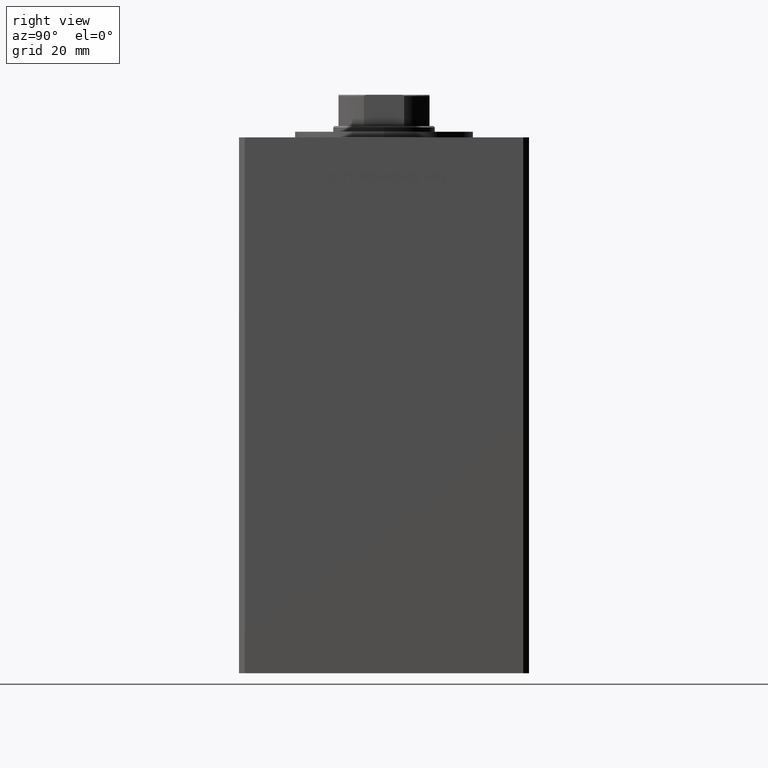
[diagram: clean part render]
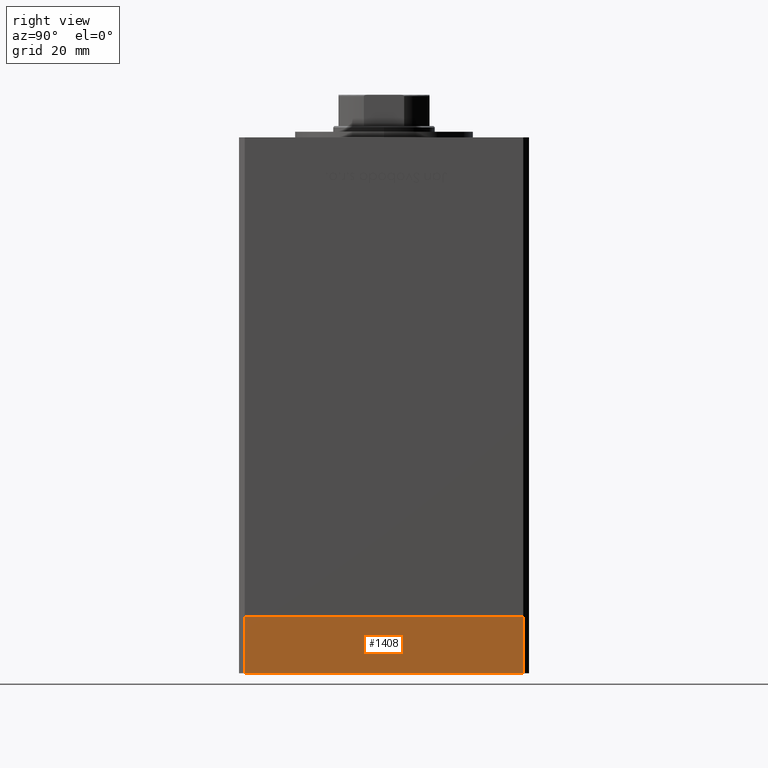
[diagram: same view with one face highlighted and labeled with its STEP entity id]
A machine part, right view. The second image highlights one B-rep face of the part: STEP entity #1408.
In plain terms, the highlighted planar face has unit normal (1, 0, 0).
Its self-contained STEP definition (entity closure, byte-faithful):
#155 = CARTESIAN_POINT ( 'NONE',  ( -60.00000000000000000, 48.99999999999995737, 0.000000000000000000 ) ) ;
#413 = DIRECTION ( 'NONE',  ( 0.000000000000000000, 0.000000000000000000, 1.000000000000000000 ) ) ;
#1408 = ADVANCED_FACE ( 'NONE', ( #43690 ), #32344, .T. ) ;
#3192 = VECTOR ( 'NONE', #32085, 1000.000000000000000 ) ;
#3717 = EDGE_LOOP ( 'NONE', ( #9382, #21103, #36849, #39263 ) ) ;
#9382 = ORIENTED_EDGE ( 'NONE', *, *, #41429, .F. ) ;
#11368 = VECTOR ( 'NONE', #36797, 1000.000000000000000 ) ;
#11536 = LINE ( 'NONE', #15484, #3192 ) ;
#12326 = CARTESIAN_POINT ( 'NONE',  ( -60.00000000000000000, 48.99999999999995737, -20.00000000000000000 ) ) ;
#12541 = LINE ( 'NONE', #36529, #27074 ) ;
#12554 = CARTESIAN_POINT ( 'NONE',  ( -60.00000000000000000, -49.00000000000000000, -20.00000000000000000 ) ) ;
#13289 = DIRECTION ( 'NONE',  ( 0.000000000000000000, 0.000000000000000000, 1.000000000000000000 ) ) ;
#15484 = CARTESIAN_POINT ( 'NONE',  ( -60.00000000000000000, 48.99999999999995737, -20.00000000000000000 ) ) ;
#16412 = VECTOR ( 'NONE', #44449, 1000.000000000000000 ) ;
#20195 = LINE ( 'NONE', #155, #11368 ) ;
#21103 = ORIENTED_EDGE ( 'NONE', *, *, #25776, .F. ) ;
#25776 = EDGE_CURVE ( 'NONE', #26879, #42642, #12541, .T. ) ;
#25963 = CARTESIAN_POINT ( 'NONE',  ( -60.00000000000000000, -49.00000000000000000, -20.00000000000000000 ) ) ;
#26879 = VERTEX_POINT ( 'NONE', #33146 ) ;
#27074 = VECTOR ( 'NONE', #413, 1000.000000000000000 ) ;
#28137 = CARTESIAN_POINT ( 'NONE',  ( -60.00000000000000000, 48.99999999999995737, 0.000000000000000000 ) ) ;
#28404 = DIRECTION ( 'NONE',  ( -1.000000000000000000, 0.000000000000000000, 0.000000000000000000 ) ) ;
#31404 = VERTEX_POINT ( 'NONE', #25963 ) ;
#32085 = DIRECTION ( 'NONE',  ( 0.000000000000000000, -1.000000000000000000, 0.000000000000000000 ) ) ;
#32344 = PLANE ( 'NONE',  #51541 ) ;
#33146 = CARTESIAN_POINT ( 'NONE',  ( -60.00000000000000000, 48.99999999999995737, -20.00000000000000000 ) ) ;
#36529 = CARTESIAN_POINT ( 'NONE',  ( -60.00000000000000000, 48.99999999999995737, -20.00000000000000000 ) ) ;
#36797 = DIRECTION ( 'NONE',  ( 0.000000000000000000, -1.000000000000000000, 0.000000000000000000 ) ) ;
#36799 = LINE ( 'NONE', #12554, #16412 ) ;
#36849 = ORIENTED_EDGE ( 'NONE', *, *, #51855, .T. ) ;
#39263 = ORIENTED_EDGE ( 'NONE', *, *, #44813, .T. ) ;
#41429 = EDGE_CURVE ( 'NONE', #42642, #42181, #20195, .T. ) ;
#42181 = VERTEX_POINT ( 'NONE', #51900 ) ;
#42642 = VERTEX_POINT ( 'NONE', #28137 ) ;
#43690 = FACE_OUTER_BOUND ( 'NONE', #3717, .T. ) ;
#44449 = DIRECTION ( 'NONE',  ( 0.000000000000000000, 0.000000000000000000, 1.000000000000000000 ) ) ;
#44813 = EDGE_CURVE ( 'NONE', #31404, #42181, #36799, .T. ) ;
#51541 = AXIS2_PLACEMENT_3D ( 'NONE', #12326, #28404, #13289 ) ;
#51855 = EDGE_CURVE ( 'NONE', #26879, #31404, #11536, .T. ) ;
#51900 = CARTESIAN_POINT ( 'NONE',  ( -60.00000000000000000, -49.00000000000000000, 0.000000000000000000 ) ) ;